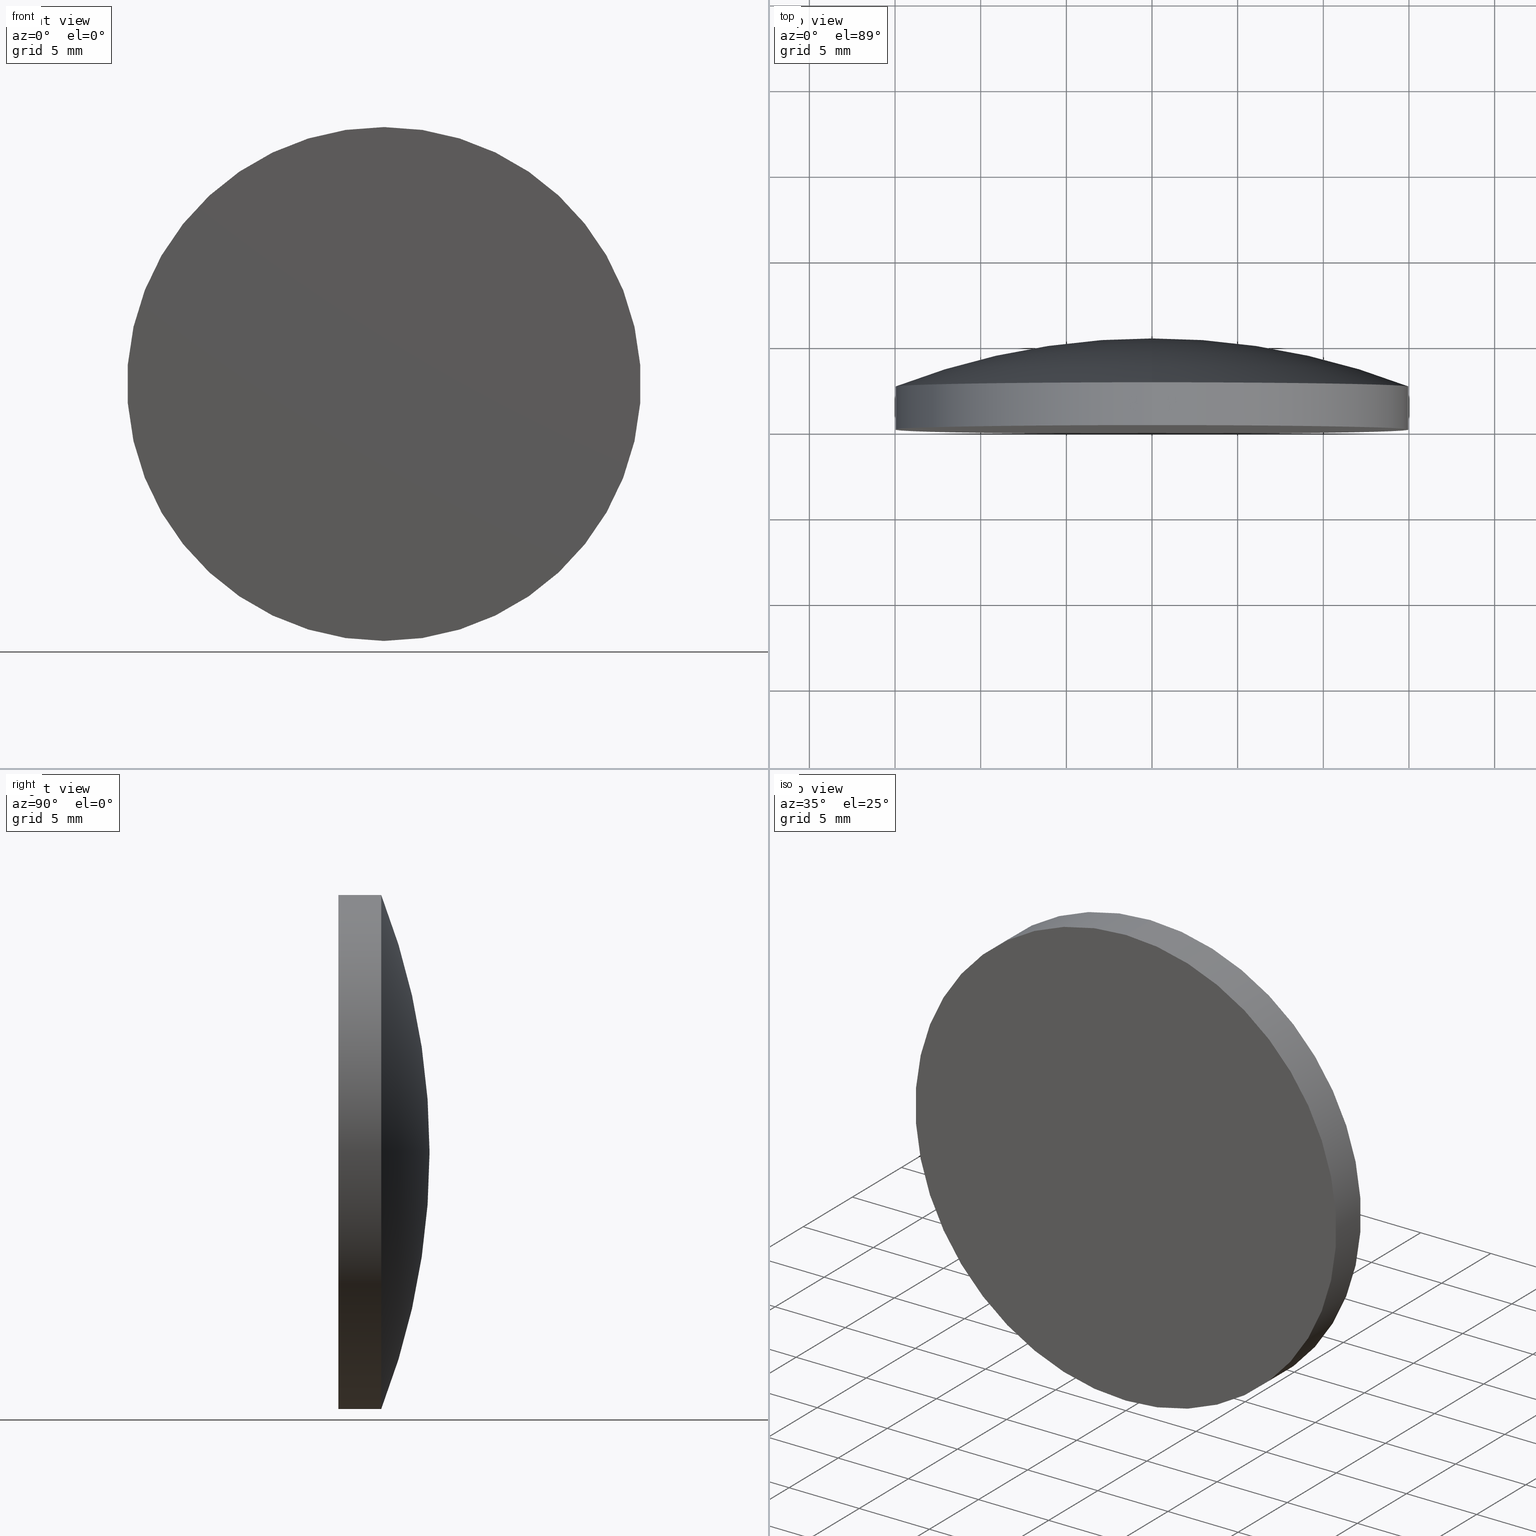
[diagram: canonical four-view strip — front | top / right | iso, engineering-drawing reading convention]
A machine part, canonical four-view strip (front | top / right | iso — engineering-drawing reading convention). The complete STEP part file that produces these views, byte-faithful:
ISO-10303-21;
HEADER;
FILE_DESCRIPTION (( 'STEP AP203' ),
    '1' );
FILE_NAME ('100551.STEP',
    '2024-05-09T01:15:26',
    ( '' ),
    ( '' ),
    'SwSTEP 2.0',
    'SolidWorks 2020',
    '' );
FILE_SCHEMA (( 'CONFIG_CONTROL_DESIGN' ));
ENDSEC;

DATA;
#1 = PRODUCT_DEFINITION ( 'δ֪', '', #88, #89 ) ;
#2 = FACE_OUTER_BOUND ( 'NONE', #28, .T. ) ;
#3 = CARTESIAN_POINT ( 'NONE',  ( 0.000000000000000000, 2.499999999999996891, 14.99999999999999645 ) ) ;
#4 = DIRECTION ( 'NONE',  ( -0.000000000000000000, 1.000000000000000000, -0.000000000000000000 ) ) ;
#5 = PERSON_AND_ORGANIZATION ( #151, #77 ) ;
#6 = CC_DESIGN_APPROVAL ( #25, ( #88 ) ) ;
#7 = PERSON_AND_ORGANIZATION_ROLE ( 'creator' ) ;
#8 = DATE_AND_TIME ( #143, #160 ) ;
#9 = DIRECTION ( 'NONE',  ( 1.000000000000000000, 0.000000000000000000, 0.000000000000000000 ) ) ;
#10 = CARTESIAN_POINT ( 'NONE',  ( 1.836970198721029589E-15, 5.320000000000000284, -15.00000000000000000 ) ) ;
#11 = DIRECTION ( 'NONE',  ( 0.000000000000000000, 0.000000000000000000, 1.000000000000000000 ) ) ;
#12 = ORIENTED_EDGE ( 'NONE', *, *, #53, .T. ) ;
#13 = PERSON_AND_ORGANIZATION ( #151, #77 ) ;
#14 = CARTESIAN_POINT ( 'NONE',  ( 0.000000000000000000, -35.97999999440191488, 0.000000000000000000 ) ) ;
#15 = DIRECTION ( 'NONE',  ( 0.000000000000000000, -0.000000000000000000, -1.000000000000000000 ) ) ;
#16 = ADVANCED_FACE ( 'NONE', ( #197 ), #26, .T. ) ;
#17 = DIRECTION ( 'NONE',  ( -0.000000000000000000, 1.000000000000000000, -0.000000000000000000 ) ) ;
#18 = CARTESIAN_POINT ( 'NONE',  ( 1.836970198721029589E-15, -1.734723475976807094E-15, -15.00000000000000000 ) ) ;
#19 = APPROVAL_ROLE ( '' ) ;
#20 = AXIS2_PLACEMENT_3D ( 'NONE', #50, #140, #78 ) ;
#21 = PERSON_AND_ORGANIZATION ( #151, #77 ) ;
#22 = MECHANICAL_CONTEXT ( 'NONE', #164, 'mechanical' ) ;
#23 = EDGE_CURVE ( 'NONE', #73, #115, #112, .T. ) ;
#24 = DATE_AND_TIME ( #72, #35 ) ;
#25 = APPROVAL ( #82, 'δָ��' ) ;
#26 = PLANE ( 'NONE',  #201 ) ;
#27 = ORIENTED_EDGE ( 'NONE', *, *, #168, .T. ) ;
#28 = EDGE_LOOP ( 'NONE', ( #149, #166, #12 ) ) ;
#29 = APPROVAL_PERSON_ORGANIZATION ( #5, #128, #141 ) ;
#30 = CARTESIAN_POINT ( 'NONE',  ( 1.836970198721029589E-15, 2.499999999999996891, -14.99999999999999645 ) ) ;
#31 =( LENGTH_UNIT ( ) NAMED_UNIT ( * ) SI_UNIT ( .MILLI., .METRE. ) );
#32 = CARTESIAN_POINT ( 'NONE',  ( 0.000000000000000000, 2.499999999999998224, 0.000000000000000000 ) ) ;
#33 = DIRECTION ( 'NONE',  ( 0.000000000000000000, 0.000000000000000000, 1.000000000000000000 ) ) ;
#34 = APPROVAL_DATE_TIME ( #173, #25 ) ;
#35 = LOCAL_TIME ( 9, 15, 26.00000000000000000, #198 ) ;
#36 = ADVANCED_FACE ( 'NONE', ( #167 ), #39, .T. ) ;
#37 = PERSON_AND_ORGANIZATION_ROLE ( 'creator' ) ;
#38 = EDGE_LOOP ( 'NONE', ( #70, #56, #101, #87 ) ) ;
#39 = TOROIDAL_SURFACE ( 'NONE', #71, 0.0006800010524353472530, 41.29999999999999005 ) ;
#40 = APPROVAL_ROLE ( '' ) ;
#41 = DIRECTION ( 'NONE',  ( 0.000000000000000000, 0.000000000000000000, 1.000000000000000000 ) ) ;
#42 = APPROVAL_PERSON_ORGANIZATION ( #92, #25, #19 ) ;
#43 = DIRECTION ( 'NONE',  ( 1.224646799147353207E-16, 0.000000000000000000, -1.000000000000000000 ) ) ;
#44 = SECURITY_CLASSIFICATION ( '', '', #95 ) ;
#45 = DIRECTION ( 'NONE',  ( -0.000000000000000000, 1.000000000000000000, -0.000000000000000000 ) ) ;
#46 = COORDINATED_UNIVERSAL_TIME_OFFSET ( 8, 0, .AHEAD. ) ;
#47 = DIRECTION ( 'NONE',  ( -0.000000000000000000, 1.000000000000000000, -0.000000000000000000 ) ) ;
#48 = COORDINATED_UNIVERSAL_TIME_OFFSET ( 8, 0, .AHEAD. ) ;
#49 = AXIS2_PLACEMENT_3D ( 'NONE', #152, #169, #41 ) ;
#50 = CARTESIAN_POINT ( 'NONE',  ( 0.000000000000000000, 5.320000000000000284, 0.000000000000000000 ) ) ;
#51 = APPROVAL_DATE_TIME ( #161, #128 ) ;
#52 = PERSON_AND_ORGANIZATION_ROLE ( 'design_supplier' ) ;
#53 = EDGE_CURVE ( 'NONE', #115, #57, #119, .T. ) ;
#54 = APPLICATION_PROTOCOL_DEFINITION ( 'international standard', 'config_control_design', 1994, #164 ) ;
#55 = AXIS2_PLACEMENT_3D ( 'NONE', #32, #93, #105 ) ;
#56 = ORIENTED_EDGE ( 'NONE', *, *, #74, .T. ) ;
#57 = VERTEX_POINT ( 'NONE', #200 ) ;
#58 = CIRCLE ( 'NONE', #145, 15.00000000000000000 ) ;
#59 = CC_DESIGN_DATE_AND_TIME_ASSIGNMENT ( #186, #175, ( #1 ) ) ;
#60 = CARTESIAN_POINT ( 'NONE',  ( 8.327611122817794886E-20, -35.97999999440191488, -0.0006800010524353472530 ) ) ;
#61 = AXIS2_PLACEMENT_3D ( 'NONE', #67, #33, #9 ) ;
#62 = AXIS2_PLACEMENT_3D ( 'NONE', #191, #17, #158 ) ;
#63 = CARTESIAN_POINT ( 'NONE',  ( 0.000000000000000000, -1.734723475976807094E-15, 0.000000000000000000 ) ) ;
#64 = CYLINDRICAL_SURFACE ( 'NONE', #62, 15.00000000000000000 ) ;
#65 =( NAMED_UNIT ( * ) PLANE_ANGLE_UNIT ( ) SI_UNIT ( $, .RADIAN. ) );
#66 = CIRCLE ( 'NONE', #137, 15.00000000000000000 ) ;
#67 = CARTESIAN_POINT ( 'NONE',  ( 0.000000000000000000, 0.000000000000000000, 0.000000000000000000 ) ) ;
#68 = LOCAL_TIME ( 9, 15, 26.00000000000000000, #46 ) ;
#69 = EDGE_LOOP ( 'NONE', ( #133, #154 ) ) ;
#70 = ORIENTED_EDGE ( 'NONE', *, *, #144, .T. ) ;
#71 = AXIS2_PLACEMENT_3D ( 'NONE', #14, #75, #134 ) ;
#72 = CALENDAR_DATE ( 2024, 9, 5 ) ;
#73 = VERTEX_POINT ( 'NONE', #30 ) ;
#74 = EDGE_CURVE ( 'NONE', #132, #73, #150, .T. ) ;
#75 = DIRECTION ( 'NONE',  ( -0.000000000000000000, 1.000000000000000000, -0.000000000000000000 ) ) ;
#76 = PRODUCT_RELATED_PRODUCT_CATEGORY ( 'detail', '', ( #187 ) ) ;
#77 = ORGANIZATION ( 'δָ��', 'δָ��', '' ) ;
#78 = DIRECTION ( 'NONE',  ( 0.000000000000000000, 0.000000000000000000, 1.000000000000000000 ) ) ;
#79 = APPLICATION_CONTEXT ( 'configuration controlled 3d designs of mechanical parts and assemblies' ) ;
#80 = APPROVAL_STATUS ( 'not_yet_approved' ) ;
#81 = CYLINDRICAL_SURFACE ( 'NONE', #20, 15.00000000000000000 ) ;
#82 = APPROVAL_STATUS ( 'not_yet_approved' ) ;
#83 = PERSON_AND_ORGANIZATION_ROLE ( 'classification_officer' ) ;
#84 = EDGE_LOOP ( 'NONE', ( #131, #27, #181, #183 ) ) ;
#85 = CC_DESIGN_PERSON_AND_ORGANIZATION_ASSIGNMENT ( #21, #83, ( #44 ) ) ;
#86 = ORIENTED_EDGE ( 'NONE', *, *, #172, .T. ) ;
#87 = ORIENTED_EDGE ( 'NONE', *, *, #135, .F. ) ;
#88 = PRODUCT_DEFINITION_FORMATION_WITH_SPECIFIED_SOURCE ( '�κ�', '', #187, .NOT_KNOWN. ) ;
#89 = DESIGN_CONTEXT ( 'detailed design', #79, 'design' ) ;
#90 = CC_DESIGN_PERSON_AND_ORGANIZATION_ASSIGNMENT ( #139, #7, ( #1 ) ) ;
#91 = LINE ( 'NONE', #171, #170 ) ;
#92 = PERSON_AND_ORGANIZATION ( #151, #77 ) ;
#93 = DIRECTION ( 'NONE',  ( -0.000000000000000000, 1.000000000000000000, -0.000000000000000000 ) ) ;
#94 = PERSON_AND_ORGANIZATION_ROLE ( 'design_owner' ) ;
#95 = SECURITY_CLASSIFICATION_LEVEL ( 'unclassified' ) ;
#96 = AXIS2_PLACEMENT_3D ( 'NONE', #126, #4, #138 ) ;
#97 = COORDINATED_UNIVERSAL_TIME_OFFSET ( 8, 0, .AHEAD. ) ;
#98 = EDGE_CURVE ( 'NONE', #73, #57, #136, .T. ) ;
#99 = DATE_TIME_ROLE ( 'classification_date' ) ;
#100 = VERTEX_POINT ( 'NONE', #102 ) ;
#101 = ORIENTED_EDGE ( 'NONE', *, *, #172, .F. ) ;
#102 = CARTESIAN_POINT ( 'NONE',  ( 0.000000000000000000, -1.734723475976807094E-15, 15.00000000000000000 ) ) ;
#103 = ADVANCED_FACE ( 'NONE', ( #2 ), #156, .T. ) ;
#104 = APPROVAL ( #163, 'δָ��' ) ;
#105 = DIRECTION ( 'NONE',  ( 0.000000000000000000, 0.000000000000000000, 1.000000000000000000 ) ) ;
#106 = CARTESIAN_POINT ( 'NONE',  ( 0.000000000000000000, -1.734723475976807094E-15, 0.000000000000000000 ) ) ;
#107 = COORDINATED_UNIVERSAL_TIME_OFFSET ( 8, 0, .AHEAD. ) ;
#108 = PERSON_AND_ORGANIZATION ( #151, #77 ) ;
#109 = ADVANCED_BREP_SHAPE_REPRESENTATION ( '100551', ( #146, #61 ), #190 ) ;
#110 = CALENDAR_DATE ( 2024, 9, 5 ) ;
#111 = CALENDAR_DATE ( 2024, 9, 5 ) ;
#112 = CIRCLE ( 'NONE', #49, 15.00000000000000000 ) ;
#113 = CC_DESIGN_PERSON_AND_ORGANIZATION_ASSIGNMENT ( #127, #94, ( #187 ) ) ;
#114 = ORIENTED_EDGE ( 'NONE', *, *, #98, .T. ) ;
#115 = VERTEX_POINT ( 'NONE', #3 ) ;
#116 = CARTESIAN_POINT ( 'NONE',  ( 0.000000000000000000, -9.184850993605147944E-16, 0.000000000000000000 ) ) ;
#117 = CC_DESIGN_APPROVAL ( #128, ( #1 ) ) ;
#118 = DIRECTION ( 'NONE',  ( 1.000000000000000000, 0.000000000000000000, 1.224646799147353207E-16 ) ) ;
#119 = CIRCLE ( 'NONE', #165, 41.29999999999999005 ) ;
#120 = APPROVAL_PERSON_ORGANIZATION ( #13, #104, #40 ) ;
#121 = CC_DESIGN_PERSON_AND_ORGANIZATION_ASSIGNMENT ( #142, #52, ( #88 ) ) ;
#122 = DIRECTION ( 'NONE',  ( -0.000000000000000000, 1.000000000000000000, -0.000000000000000000 ) ) ;
#123 = DIRECTION ( 'NONE',  ( 0.000000000000000000, 0.000000000000000000, 1.000000000000000000 ) ) ;
#124 = APPLICATION_PROTOCOL_DEFINITION ( 'international standard', 'config_control_design', 1994, #79 ) ;
#125 = CLOSED_SHELL ( 'NONE', ( #180, #36, #103, #16, #155 ) ) ;
#126 = CARTESIAN_POINT ( 'NONE',  ( 0.000000000000000000, -35.97999999440191488, 0.000000000000000000 ) ) ;
#127 = PERSON_AND_ORGANIZATION ( #151, #77 ) ;
#128 = APPROVAL ( #80, 'δָ��' ) ;
#129 = APPROVAL_DATE_TIME ( #24, #104 ) ;
#130 = AXIS2_PLACEMENT_3D ( 'NONE', #60, #118, #43 ) ;
#131 = ORIENTED_EDGE ( 'NONE', *, *, #74, .F. ) ;
#132 = VERTEX_POINT ( 'NONE', #18 ) ;
#133 = ORIENTED_EDGE ( 'NONE', *, *, #144, .F. ) ;
#134 = DIRECTION ( 'NONE',  ( 0.000000000000000000, 0.000000000000000000, 1.000000000000000000 ) ) ;
#135 = EDGE_CURVE ( 'NONE', #100, #115, #91, .T. ) ;
#136 = CIRCLE ( 'NONE', #130, 41.29999999999999005 ) ;
#137 = AXIS2_PLACEMENT_3D ( 'NONE', #63, #122, #157 ) ;
#138 = DIRECTION ( 'NONE',  ( 0.000000000000000000, 0.000000000000000000, 1.000000000000000000 ) ) ;
#139 = PERSON_AND_ORGANIZATION ( #151, #77 ) ;
#140 = DIRECTION ( 'NONE',  ( -0.000000000000000000, 1.000000000000000000, -0.000000000000000000 ) ) ;
#141 = APPROVAL_ROLE ( '' ) ;
#142 = PERSON_AND_ORGANIZATION ( #151, #77 ) ;
#143 = CALENDAR_DATE ( 2024, 9, 5 ) ;
#144 = EDGE_CURVE ( 'NONE', #100, #132, #66, .T. ) ;
#145 = AXIS2_PLACEMENT_3D ( 'NONE', #106, #45, #123 ) ;
#146 = MANIFOLD_SOLID_BREP ( '��ת1', #125 ) ;
#147 = SHAPE_DEFINITION_REPRESENTATION ( #182, #109 ) ;
#148 = DIRECTION ( 'NONE',  ( 0.000000000000000000, -1.000000000000000000, 0.000000000000000000 ) ) ;
#149 = ORIENTED_EDGE ( 'NONE', *, *, #98, .F. ) ;
#150 = LINE ( 'NONE', #10, #184 ) ;
#151 = PERSON ( 'δָ��', 'δָ��', 'δָ��', ('δָ��'), ('δָ��'), ('δָ��') ) ;
#152 = CARTESIAN_POINT ( 'NONE',  ( 0.000000000000000000, 2.499999999999998224, 0.000000000000000000 ) ) ;
#153 = CC_DESIGN_APPROVAL ( #104, ( #44 ) ) ;
#154 = ORIENTED_EDGE ( 'NONE', *, *, #168, .F. ) ;
#155 = ADVANCED_FACE ( 'NONE', ( #185 ), #81, .T. ) ;
#156 = TOROIDAL_SURFACE ( 'NONE', #96, 0.0006800010524353472530, 41.29999999999999005 ) ;
#157 = DIRECTION ( 'NONE',  ( 0.000000000000000000, 0.000000000000000000, 1.000000000000000000 ) ) ;
#158 = DIRECTION ( 'NONE',  ( 0.000000000000000000, 0.000000000000000000, 1.000000000000000000 ) ) ;
#159 = CALENDAR_DATE ( 2024, 9, 5 ) ;
#160 = LOCAL_TIME ( 9, 15, 26.00000000000000000, #97 ) ;
#161 = DATE_AND_TIME ( #111, #189 ) ;
#162 = CC_DESIGN_PERSON_AND_ORGANIZATION_ASSIGNMENT ( #108, #37, ( #88 ) ) ;
#163 = APPROVAL_STATUS ( 'not_yet_approved' ) ;
#164 = APPLICATION_CONTEXT ( 'configuration controlled 3d designs of mechanical parts and assemblies' ) ;
#165 = AXIS2_PLACEMENT_3D ( 'NONE', #176, #178, #11 ) ;
#166 = ORIENTED_EDGE ( 'NONE', *, *, #23, .T. ) ;
#167 = FACE_OUTER_BOUND ( 'NONE', #199, .T. ) ;
#168 = EDGE_CURVE ( 'NONE', #132, #100, #58, .T. ) ;
#169 = DIRECTION ( 'NONE',  ( -0.000000000000000000, 1.000000000000000000, -0.000000000000000000 ) ) ;
#170 = VECTOR ( 'NONE', #47, 1000.000000000000000 ) ;
#171 = CARTESIAN_POINT ( 'NONE',  ( 0.000000000000000000, 5.320000000000000284, 15.00000000000000000 ) ) ;
#172 = EDGE_CURVE ( 'NONE', #115, #73, #196, .T. ) ;
#173 = DATE_AND_TIME ( #110, #68 ) ;
#174 = FACE_OUTER_BOUND ( 'NONE', #38, .T. ) ;
#175 = DATE_TIME_ROLE ( 'creation_date' ) ;
#176 = CARTESIAN_POINT ( 'NONE',  ( 0.000000000000000000, -35.97999999440191488, 0.0006800010524353472530 ) ) ;
#177 = LOCAL_TIME ( 9, 15, 26.00000000000000000, #107 ) ;
#178 = DIRECTION ( 'NONE',  ( -1.000000000000000000, 0.000000000000000000, 0.000000000000000000 ) ) ;
#179 = DIRECTION ( 'NONE',  ( -0.000000000000000000, 1.000000000000000000, -0.000000000000000000 ) ) ;
#180 = ADVANCED_FACE ( 'NONE', ( #174 ), #64, .T. ) ;
#181 = ORIENTED_EDGE ( 'NONE', *, *, #135, .T. ) ;
#182 = PRODUCT_DEFINITION_SHAPE ( 'NONE', 'NONE',  #1 ) ;
#183 = ORIENTED_EDGE ( 'NONE', *, *, #23, .F. ) ;
#184 = VECTOR ( 'NONE', #179, 1000.000000000000000 ) ;
#185 = FACE_OUTER_BOUND ( 'NONE', #84, .T. ) ;
#186 = DATE_AND_TIME ( #159, #177 ) ;
#187 = PRODUCT ( '100551', '100551', '', ( #22 ) ) ;
#188 = CC_DESIGN_DATE_AND_TIME_ASSIGNMENT ( #8, #99, ( #44 ) ) ;
#189 = LOCAL_TIME ( 9, 15, 26.00000000000000000, #48 ) ;
#190 =( GEOMETRIC_REPRESENTATION_CONTEXT ( 3 ) GLOBAL_UNCERTAINTY_ASSIGNED_CONTEXT ( ( #194 ) ) GLOBAL_UNIT_ASSIGNED_CONTEXT ( ( #31, #65, #192 ) ) REPRESENTATION_CONTEXT ( 'NONE', 'WORKASPACE' ) );
#191 = CARTESIAN_POINT ( 'NONE',  ( 0.000000000000000000, 5.320000000000000284, 0.000000000000000000 ) ) ;
#192 =( NAMED_UNIT ( * ) SI_UNIT ( $, .STERADIAN. ) SOLID_ANGLE_UNIT ( ) );
#193 = CC_DESIGN_SECURITY_CLASSIFICATION ( #44, ( #88 ) ) ;
#194 = UNCERTAINTY_MEASURE_WITH_UNIT (LENGTH_MEASURE( 1.000000000000000082E-05 ), #31, 'distance_accuracy_value', 'NONE');
#195 = ORIENTED_EDGE ( 'NONE', *, *, #53, .F. ) ;
#196 = CIRCLE ( 'NONE', #55, 15.00000000000000000 ) ;
#197 = FACE_OUTER_BOUND ( 'NONE', #69, .T. ) ;
#198 = COORDINATED_UNIVERSAL_TIME_OFFSET ( 8, 0, .AHEAD. ) ;
#199 = EDGE_LOOP ( 'NONE', ( #86, #114, #195 ) ) ;
#200 = CARTESIAN_POINT ( 'NONE',  ( 0.000000000000000000, 5.320000000000000284, 0.000000000000000000 ) ) ;
#201 = AXIS2_PLACEMENT_3D ( 'NONE', #116, #148, #15 ) ;
ENDSEC;
END-ISO-10303-21;
